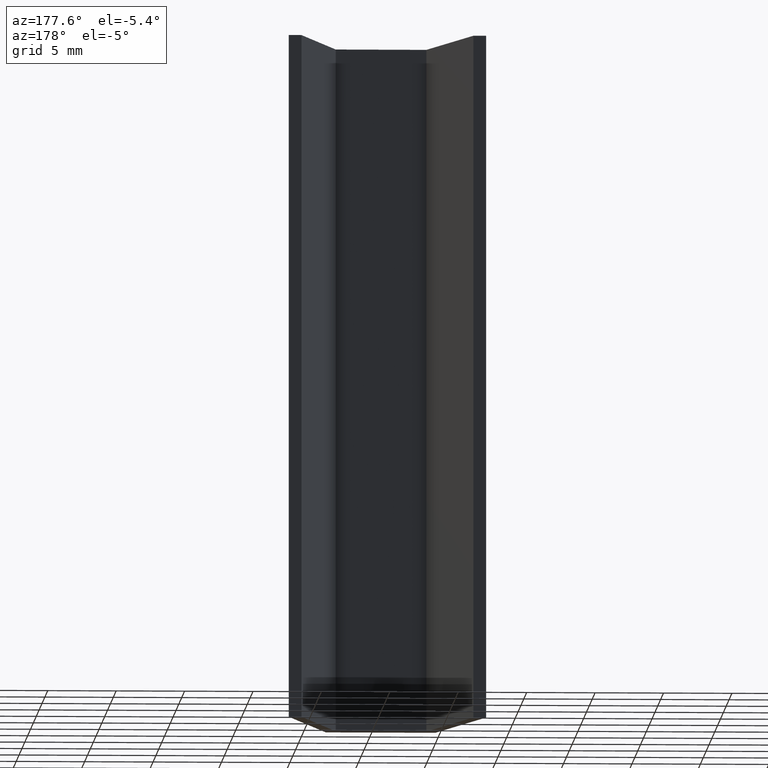
[diagram: clean part render]
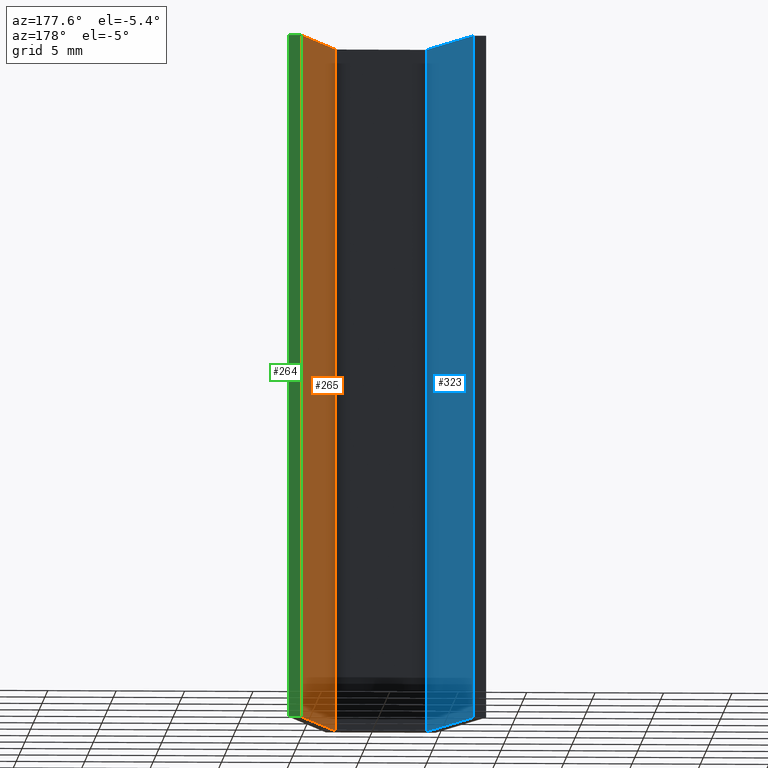
[diagram: same view with three faces highlighted in distinct colors, each labeled with its STEP entity id]
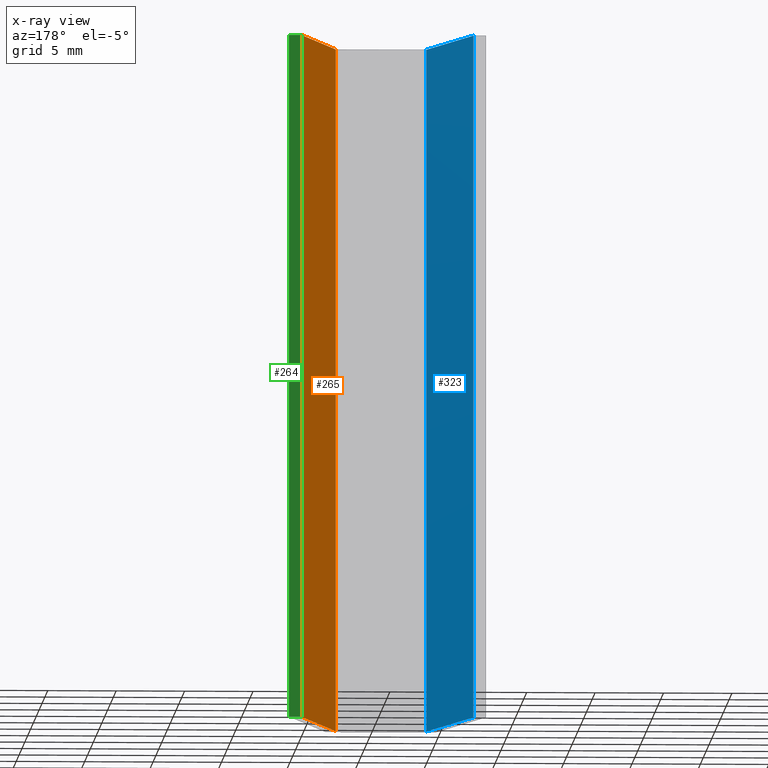
[diagram: x-ray of the same camera — body ghosted, the three highlighted faces saturated]
A machine part, auxiliary view with three faces highlighted in distinct colors.
The next image is the same camera in x-ray (body ghosted, the three faces saturated) — at least one of them is partly hidden behind the body in this view.
Their STEP definitions:

[orange] entity #265 — the highlighted planar face has unit normal (0.9659, -0.2588, 0).
#16 = LINE ( 'NONE', #229, #17 ) ;
#17 = VECTOR ( 'NONE', #224, 1000.000000000000000 ) ;
#22 = LINE ( 'NONE', #222, #161 ) ;
#33 = VERTEX_POINT ( 'NONE', #158 ) ;
#34 = VERTEX_POINT ( 'NONE', #143 ) ;
#37 = VERTEX_POINT ( 'NONE', #140 ) ;
#42 = VERTEX_POINT ( 'NONE', #137 ) ;
#59 = FACE_OUTER_BOUND ( 'NONE', #297, .T. ) ;
#92 = ORIENTED_EDGE ( 'NONE', *, *, #347, .T. ) ;
#137 = CARTESIAN_POINT ( 'NONE',  ( 7.309405710818933400, 0.8999999999999998000, 50.00000000000000000 ) ) ;
#140 = CARTESIAN_POINT ( 'NONE',  ( 7.309405710818933400, 0.8999999999999998000, 0.0000000000000000000 ) ) ;
#143 = CARTESIAN_POINT ( 'NONE',  ( 10.28364174680436000, 12.00000000000000000, 50.00000000000000000 ) ) ;
#158 = CARTESIAN_POINT ( 'NONE',  ( 10.28364174680436000, 12.00000000000000000, 0.0000000000000000000 ) ) ;
#161 = VECTOR ( 'NONE', #214, 999.9999999999998900 ) ;
#162 = LINE ( 'NONE', #240, #163 ) ;
#163 = VECTOR ( 'NONE', #228, 1000.000000000000000 ) ;
#164 = LINE ( 'NONE', #231, #165 ) ;
#165 = VECTOR ( 'NONE', #223, 999.9999999999998900 ) ;
#214 = DIRECTION ( 'NONE',  ( -0.2588190451025178500, -0.9659258262890692000, -0.0000000000000000000 ) ) ;
#218 = CARTESIAN_POINT ( 'NONE',  ( 7.309405710818933400, 0.8999999999999998000, 50.00000000000000000 ) ) ;
#222 = CARTESIAN_POINT ( 'NONE',  ( 7.309405710818933400, 0.8999999999999998000, 0.0000000000000000000 ) ) ;
#223 = DIRECTION ( 'NONE',  ( -0.2588190451025178500, -0.9659258262890692000, -0.0000000000000000000 ) ) ;
#224 = DIRECTION ( 'NONE',  ( -0.0000000000000000000, -0.0000000000000000000, -1.000000000000000000 ) ) ;
#228 = DIRECTION ( 'NONE',  ( -0.0000000000000000000, -0.0000000000000000000, -1.000000000000000000 ) ) ;
#229 = CARTESIAN_POINT ( 'NONE',  ( 10.28364174680436000, 12.00000000000000000, 50.00000000000000000 ) ) ;
#231 = CARTESIAN_POINT ( 'NONE',  ( 7.309405710818933400, 0.8999999999999998000, 50.00000000000000000 ) ) ;
#233 = DIRECTION ( 'NONE',  ( 0.9659258262890690900, -0.2588190451025178500, 0.0000000000000000000 ) ) ;
#236 = DIRECTION ( 'NONE',  ( 0.2588190451025178500, 0.9659258262890690900, 0.0000000000000000000 ) ) ;
#237 = PLANE ( 'NONE',  #368 ) ;
#240 = CARTESIAN_POINT ( 'NONE',  ( 7.309405710818933400, 0.8999999999999998000, 50.00000000000000000 ) ) ;
#265 = ADVANCED_FACE ( 'NONE', ( #59 ), #237, .F. ) ;
#278 = ORIENTED_EDGE ( 'NONE', *, *, #353, .T. ) ;
#279 = ORIENTED_EDGE ( 'NONE', *, *, #354, .F. ) ;
#280 = ORIENTED_EDGE ( 'NONE', *, *, #355, .F. ) ;
#297 = EDGE_LOOP ( 'NONE', ( #278, #279, #280, #92 ) ) ;
#347 = EDGE_CURVE ( 'NONE', #34, #33, #16, .T. ) ;
#353 = EDGE_CURVE ( 'NONE', #33, #37, #22, .T. ) ;
#354 = EDGE_CURVE ( 'NONE', #42, #37, #162, .T. ) ;
#355 = EDGE_CURVE ( 'NONE', #34, #42, #164, .T. ) ;
#368 = AXIS2_PLACEMENT_3D ( 'NONE', #218, #233, #236 ) ;

[blue] entity #323 — the highlighted planar face has unit normal (-0.9659, -0.2588, 0).
#11 = FACE_OUTER_BOUND ( 'NONE', #292, .T. ) ;
#25 = VERTEX_POINT ( 'NONE', #148 ) ;
#26 = VERTEX_POINT ( 'NONE', #153 ) ;
#28 = VERTEX_POINT ( 'NONE', #149 ) ;
#36 = VERTEX_POINT ( 'NONE', #135 ) ;
#69 = CARTESIAN_POINT ( 'NONE',  ( -2.283641746804360800, 12.00000000000000000, 50.00000000000000000 ) ) ;
#70 = CARTESIAN_POINT ( 'NONE',  ( -2.283641746804360800, 12.00000000000000000, 0.0000000000000000000 ) ) ;
#75 = DIRECTION ( 'NONE',  ( -0.0000000000000000000, -0.0000000000000000000, -1.000000000000000000 ) ) ;
#76 = CARTESIAN_POINT ( 'NONE',  ( -2.283641746804360800, 12.00000000000000000, 50.00000000000000000 ) ) ;
#77 = DIRECTION ( 'NONE',  ( -0.2588190451025180700, 0.9659258262890690900, -0.0000000000000000000 ) ) ;
#81 = DIRECTION ( 'NONE',  ( -0.2588190451025180700, 0.9659258262890690900, -0.0000000000000000000 ) ) ;
#87 = CARTESIAN_POINT ( 'NONE',  ( 0.6905942891810676900, 0.9000000000000000200, 50.00000000000000000 ) ) ;
#90 = DIRECTION ( 'NONE',  ( -0.0000000000000000000, -0.0000000000000000000, -1.000000000000000000 ) ) ;
#97 = ORIENTED_EDGE ( 'NONE', *, *, #359, .T. ) ;
#98 = ORIENTED_EDGE ( 'NONE', *, *, #360, .F. ) ;
#99 = ORIENTED_EDGE ( 'NONE', *, *, #361, .F. ) ;
#100 = ORIENTED_EDGE ( 'NONE', *, *, #358, .T. ) ;
#135 = CARTESIAN_POINT ( 'NONE',  ( -2.283641746804360800, 12.00000000000000000, 0.0000000000000000000 ) ) ;
#148 = CARTESIAN_POINT ( 'NONE',  ( -2.283641746804360800, 12.00000000000000000, 50.00000000000000000 ) ) ;
#149 = CARTESIAN_POINT ( 'NONE',  ( 0.6905942891810676900, 0.9000000000000000200, 0.0000000000000000000 ) ) ;
#153 = CARTESIAN_POINT ( 'NONE',  ( 0.6905942891810676900, 0.9000000000000000200, 50.00000000000000000 ) ) ;
#170 = LINE ( 'NONE', #87, #171 ) ;
#171 = VECTOR ( 'NONE', #90, 1000.000000000000000 ) ;
#172 = LINE ( 'NONE', #70, #173 ) ;
#173 = VECTOR ( 'NONE', #77, 1000.000000000000100 ) ;
#174 = LINE ( 'NONE', #69, #175 ) ;
#175 = VECTOR ( 'NONE', #75, 1000.000000000000000 ) ;
#176 = LINE ( 'NONE', #76, #177 ) ;
#177 = VECTOR ( 'NONE', #81, 1000.000000000000100 ) ;
#238 = PLANE ( 'NONE',  #339 ) ;
#239 = DIRECTION ( 'NONE',  ( -0.9659258262890690900, -0.2588190451025180200, 0.0000000000000000000 ) ) ;
#241 = DIRECTION ( 'NONE',  ( 0.2588190451025180200, -0.9659258262890690900, 0.0000000000000000000 ) ) ;
#251 = CARTESIAN_POINT ( 'NONE',  ( -2.283641746804360800, 12.00000000000000000, 50.00000000000000000 ) ) ;
#292 = EDGE_LOOP ( 'NONE', ( #97, #98, #99, #100 ) ) ;
#323 = ADVANCED_FACE ( 'NONE', ( #11 ), #238, .F. ) ;
#339 = AXIS2_PLACEMENT_3D ( 'NONE', #251, #239, #241 ) ;
#358 = EDGE_CURVE ( 'NONE', #26, #28, #170, .T. ) ;
#359 = EDGE_CURVE ( 'NONE', #28, #36, #172, .T. ) ;
#360 = EDGE_CURVE ( 'NONE', #25, #36, #174, .T. ) ;
#361 = EDGE_CURVE ( 'NONE', #26, #25, #176, .T. ) ;

[green] entity #264 — the highlighted planar face has unit normal (0, -1, 0).
#12 = LINE ( 'NONE', #215, #13 ) ;
#13 = VECTOR ( 'NONE', #226, 1000.000000000000000 ) ;
#14 = LINE ( 'NONE', #221, #15 ) ;
#15 = VECTOR ( 'NONE', #245, 1000.000000000000000 ) ;
#16 = LINE ( 'NONE', #229, #17 ) ;
#17 = VECTOR ( 'NONE', #224, 1000.000000000000000 ) ;
#18 = LINE ( 'NONE', #225, #19 ) ;
#19 = VECTOR ( 'NONE', #255, 1000.000000000000000 ) ;
#33 = VERTEX_POINT ( 'NONE', #158 ) ;
#34 = VERTEX_POINT ( 'NONE', #143 ) ;
#35 = VERTEX_POINT ( 'NONE', #130 ) ;
#44 = VERTEX_POINT ( 'NONE', #155 ) ;
#58 = FACE_OUTER_BOUND ( 'NONE', #296, .T. ) ;
#130 = CARTESIAN_POINT ( 'NONE',  ( 11.21539030917343300, 12.00000000000000000, 50.00000000000000000 ) ) ;
#133 = PLANE ( 'NONE',  #367 ) ;
#143 = CARTESIAN_POINT ( 'NONE',  ( 10.28364174680436000, 12.00000000000000000, 50.00000000000000000 ) ) ;
#146 = CARTESIAN_POINT ( 'NONE',  ( 10.28364174680436000, 12.00000000000000000, 50.00000000000000000 ) ) ;
#155 = CARTESIAN_POINT ( 'NONE',  ( 11.21539030917343300, 12.00000000000000000, 0.0000000000000000000 ) ) ;
#157 = DIRECTION ( 'NONE',  ( 0.0000000000000000000, -1.000000000000000000, 0.0000000000000000000 ) ) ;
#158 = CARTESIAN_POINT ( 'NONE',  ( 10.28364174680436000, 12.00000000000000000, 0.0000000000000000000 ) ) ;
#215 = CARTESIAN_POINT ( 'NONE',  ( 11.21539030917343300, 12.00000000000000000, 50.00000000000000000 ) ) ;
#221 = CARTESIAN_POINT ( 'NONE',  ( 10.28364174680436000, 12.00000000000000000, 0.0000000000000000000 ) ) ;
#224 = DIRECTION ( 'NONE',  ( -0.0000000000000000000, -0.0000000000000000000, -1.000000000000000000 ) ) ;
#225 = CARTESIAN_POINT ( 'NONE',  ( 10.28364174680436000, 12.00000000000000000, 50.00000000000000000 ) ) ;
#226 = DIRECTION ( 'NONE',  ( -0.0000000000000000000, -0.0000000000000000000, -1.000000000000000000 ) ) ;
#229 = CARTESIAN_POINT ( 'NONE',  ( 10.28364174680436000, 12.00000000000000000, 50.00000000000000000 ) ) ;
#245 = DIRECTION ( 'NONE',  ( -1.000000000000000000, -0.0000000000000000000, -0.0000000000000000000 ) ) ;
#255 = DIRECTION ( 'NONE',  ( -1.000000000000000000, -0.0000000000000000000, -0.0000000000000000000 ) ) ;
#257 = DIRECTION ( 'NONE',  ( 0.0000000000000000000, -0.0000000000000000000, -1.000000000000000000 ) ) ;
#264 = ADVANCED_FACE ( 'NONE', ( #58 ), #133, .F. ) ;
#296 = EDGE_LOOP ( 'NONE', ( #299, #301, #300, #298 ) ) ;
#298 = ORIENTED_EDGE ( 'NONE', *, *, #345, .T. ) ;
#299 = ORIENTED_EDGE ( 'NONE', *, *, #346, .T. ) ;
#300 = ORIENTED_EDGE ( 'NONE', *, *, #348, .F. ) ;
#301 = ORIENTED_EDGE ( 'NONE', *, *, #347, .F. ) ;
#345 = EDGE_CURVE ( 'NONE', #35, #44, #12, .T. ) ;
#346 = EDGE_CURVE ( 'NONE', #44, #33, #14, .T. ) ;
#347 = EDGE_CURVE ( 'NONE', #34, #33, #16, .T. ) ;
#348 = EDGE_CURVE ( 'NONE', #35, #34, #18, .T. ) ;
#367 = AXIS2_PLACEMENT_3D ( 'NONE', #146, #157, #257 ) ;